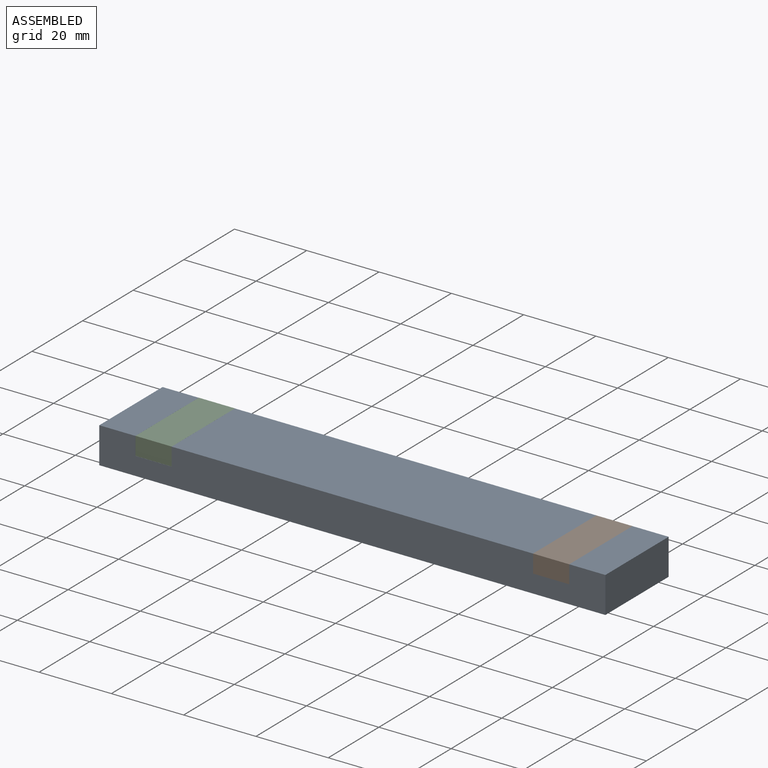
[diagram: assembled view]
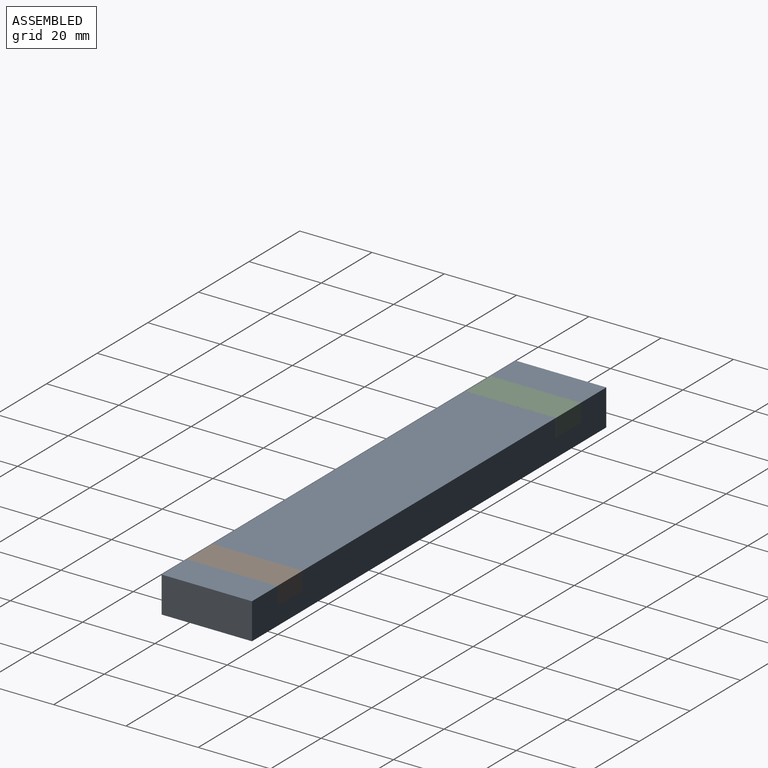
[diagram: assembled view, second angle]
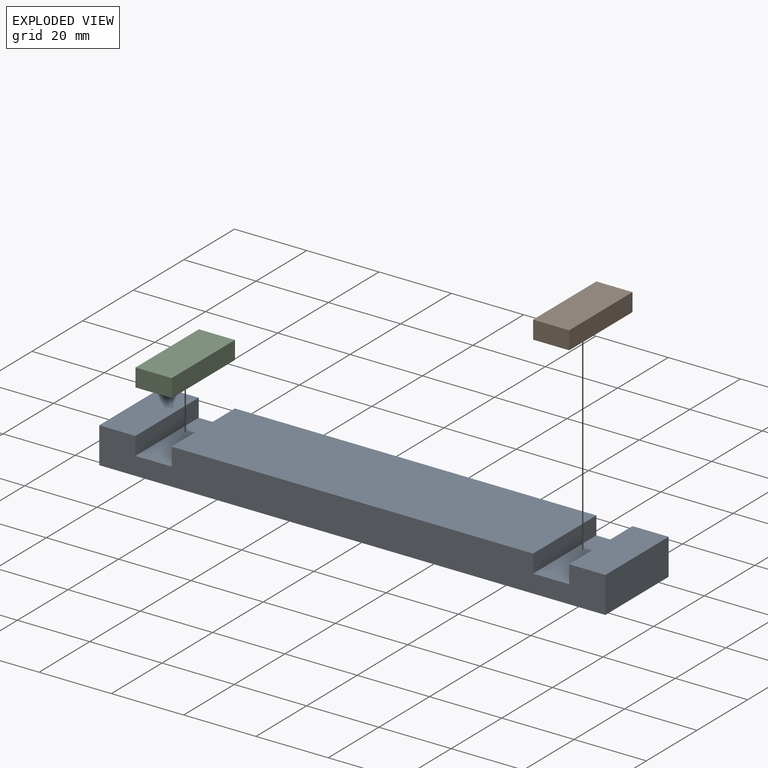
[diagram: exploded view]
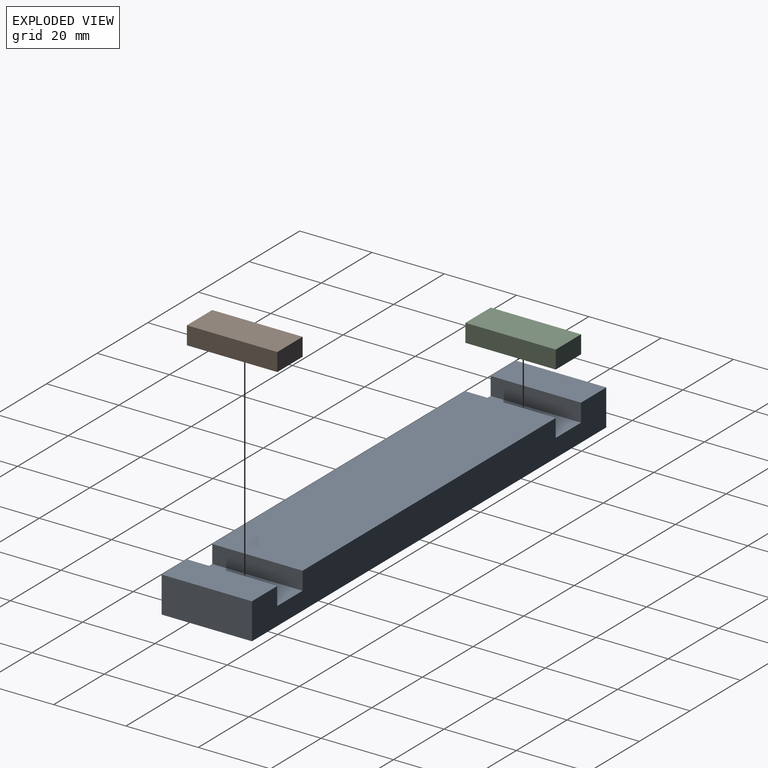
[diagram: exploded view, second angle]
ASSEMBLY  parts=3 mates=2
PART A: 14 faces, bbox 140x25x10 mm
  f0: plane 140x25mm, normal (0,0,-1), area 3500mm2, adj f1,f11,f12,f13
  f1: plane 25x10mm, normal (1,0,0), area 250mm2, adj f0,f2,f12,f13
  f2: plane 25x10mm, normal (0,0,1), area 250mm2, adj f1,f3,f12,f13
  f3: plane 25x5mm, normal (-1,0,0), area 125mm2, adj f2,f4,f12,f13
  f4: plane 25x10mm, normal (0,0,1), area 250mm2, adj f3,f5,f12,f13
  f5: plane 25x5mm, normal (1,0,0), area 125mm2, adj f4,f6,f12,f13
  f6: plane 100x25mm, normal (0,0,1), area 2500mm2, adj f5,f7,f12,f13
  f7: plane 25x5mm, normal (-1,0,0), area 125mm2, adj f6,f8,f12,f13
  f8: plane 25x10mm, normal (0,0,1), area 250mm2, adj f7,f9,f12,f13
  f9: plane 25x5mm, normal (1,0,0), area 125mm2, adj f8,f10,f12,f13
  f10: plane 25x10mm, normal (0,0,1), area 250mm2, adj f9,f11,f12,f13
  f11: plane 25x10mm, normal (-1,0,0), area 250mm2, adj f0,f10,f12,f13
  f12: plane 140x10mm, normal (0,-1,0), area 1300mm2, adj f0,f1,f2,f3,f4,f5,f6,f7
  f13: plane 140x10mm, normal (0,1,0), area 1300mm2, adj f0,f1,f2,f3,f4,f5,f6,f7
PART B: 6 faces, bbox 10x25x5 mm
  f0: plane 25x5mm, normal (-1,0,0), area 125mm2, adj f1,f3,f4,f5
  f1: plane 25x10mm, normal (0,0,-1), area 250mm2, adj f0,f2,f4,f5
  f2: plane 25x5mm, normal (1,0,0), area 125mm2, adj f1,f3,f4,f5
  f3: plane 25x10mm, normal (0,0,1), area 250mm2, adj f0,f2,f4,f5
  f4: plane 10x5mm, normal (0,-1,0), area 50mm2, adj f0,f1,f2,f3
  f5: plane 10x5mm, normal (0,1,0), area 50mm2, adj f0,f1,f2,f3
PART C: 6 faces, bbox 10x25x5 mm
  f0: plane 25x5mm, normal (-1,0,0), area 125mm2, adj f1,f3,f4,f5
  f1: plane 25x10mm, normal (0,0,-1), area 250mm2, adj f0,f2,f4,f5
  f2: plane 25x5mm, normal (1,0,0), area 125mm2, adj f1,f3,f4,f5
  f3: plane 25x10mm, normal (0,0,1), area 250mm2, adj f0,f2,f4,f5
  f4: plane 10x5mm, normal (0,-1,0), area 50mm2, adj f0,f1,f2,f3
  f5: plane 10x5mm, normal (0,1,0), area 50mm2, adj f0,f1,f2,f3
PLACE A t=(0.17,-0.03,26.52)mm
PLACE B t=(0.13,-0.03,-14.73)mm
PLACE C t=(-71.82,0,-17.45)mm
MATE parallel A.f4 <-> B.f1  axis (0,0,1) through (55.17,-12.53,26.52)mm
MATE parallel A.f8 <-> C.f1  axis (0,0,1) through (-54.83,-12.53,26.52)mm
